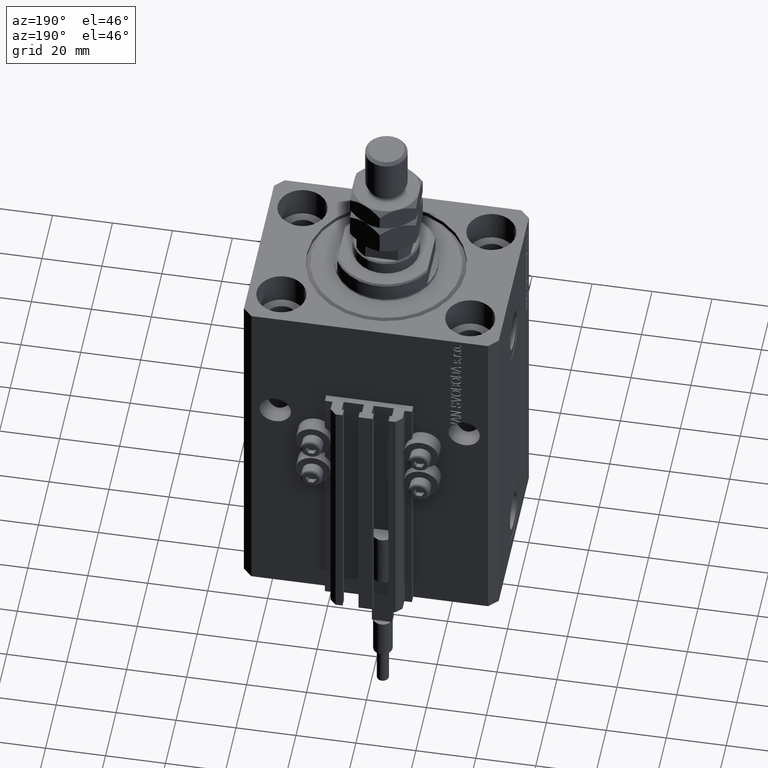
[diagram: clean part render]
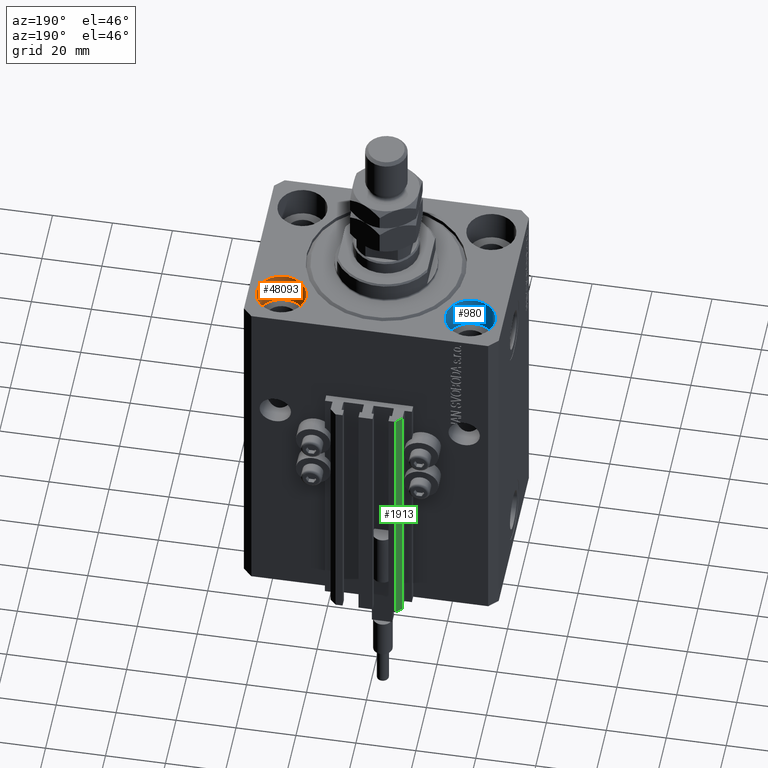
[diagram: same view with three faces highlighted in distinct colors, each labeled with its STEP entity id]
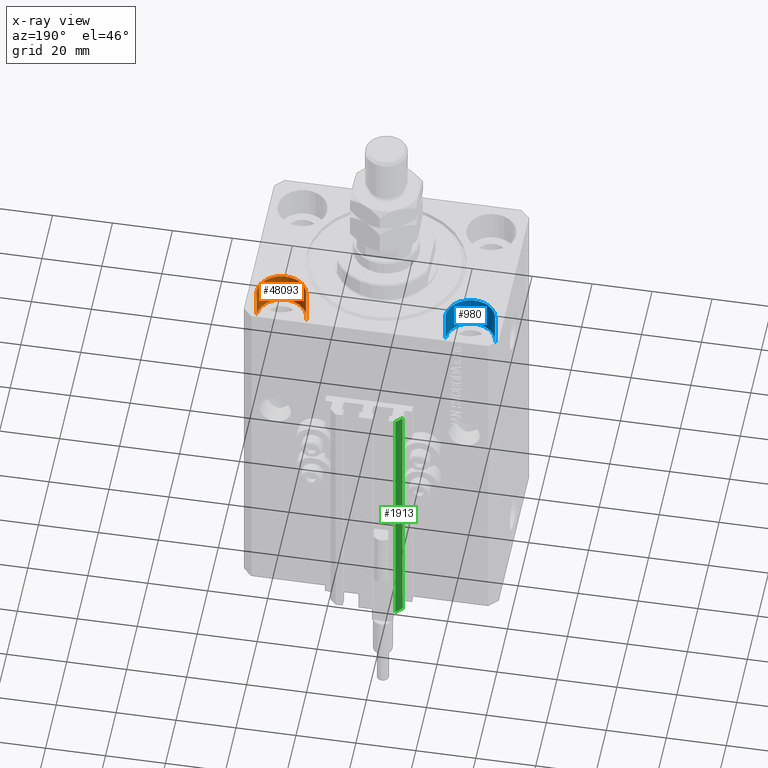
[diagram: x-ray of the same camera — body ghosted, the three highlighted faces saturated]
A machine part, auxiliary view with three faces highlighted in distinct colors.
The next image is the same camera in x-ray (body ghosted, the three faces saturated) — at least one of them is partly hidden behind the body in this view.
Their STEP definitions:

[orange] entity #48093 — the highlighted cylindrical surface (edge-blend (fillet) strip) has radius 8.25 mm, axis along (0, 0, 1).
#1193 = LINE ( 'NONE', #47423, #14315 ) ;
#2551 = ORIENTED_EDGE ( 'NONE', *, *, #49174, .F. ) ;
#3463 = DIRECTION ( 'NONE',  ( -0.000000000000000000, -0.000000000000000000, 1.000000000000000000 ) ) ;
#4171 = ORIENTED_EDGE ( 'NONE', *, *, #22312, .T. ) ;
#5800 = EDGE_CURVE ( 'NONE', #26988, #13732, #1193, .T. ) ;
#8121 = CARTESIAN_POINT ( 'NONE',  ( 31.50000000000000000, 20.00000000000001066, -11.00000000000000000 ) ) ;
#10718 = CIRCLE ( 'NONE', #19618, 8.249999999999992895 ) ;
#10845 = VERTEX_POINT ( 'NONE', #13178 ) ;
#12157 = VERTEX_POINT ( 'NONE', #25082 ) ;
#12809 = DIRECTION ( 'NONE',  ( -0.000000000000000000, -0.000000000000000000, 1.000000000000000000 ) ) ;
#13178 = CARTESIAN_POINT ( 'NONE',  ( 23.25000000000000355, 20.00000000000001066, 0.000000000000000000 ) ) ;
#13732 = VERTEX_POINT ( 'NONE', #43595 ) ;
#14315 = VECTOR ( 'NONE', #12809, 1000.000000000000000 ) ;
#18252 = AXIS2_PLACEMENT_3D ( 'NONE', #25162, #28441, #21114 ) ;
#19618 = AXIS2_PLACEMENT_3D ( 'NONE', #20675, #28748, #28496 ) ;
#20612 = FACE_OUTER_BOUND ( 'NONE', #34972, .T. ) ;
#20675 = CARTESIAN_POINT ( 'NONE',  ( 31.50000000000000000, 20.00000000000001066, 0.000000000000000000 ) ) ;
#21114 = DIRECTION ( 'NONE',  ( 1.000000000000000000, 0.000000000000000000, 0.000000000000000000 ) ) ;
#21624 = CYLINDRICAL_SURFACE ( 'NONE', #18252, 8.249999999999992895 ) ;
#22312 = EDGE_CURVE ( 'NONE', #10845, #13732, #10718, .T. ) ;
#23307 = CARTESIAN_POINT ( 'NONE',  ( 39.74999999999999289, 20.00000000000001066, -11.00000000000000000 ) ) ;
#24279 = DIRECTION ( 'NONE',  ( 1.000000000000000000, 0.000000000000000000, 0.000000000000000000 ) ) ;
#25082 = CARTESIAN_POINT ( 'NONE',  ( 23.25000000000000355, 20.00000000000001066, -11.00000000000000000 ) ) ;
#25162 = CARTESIAN_POINT ( 'NONE',  ( 31.50000000000000000, 20.00000000000001066, -11.00000000000000000 ) ) ;
#26988 = VERTEX_POINT ( 'NONE', #23307 ) ;
#27724 = EDGE_CURVE ( 'NONE', #12157, #10845, #41613, .T. ) ;
#27869 = VECTOR ( 'NONE', #3463, 1000.000000000000000 ) ;
#27952 = AXIS2_PLACEMENT_3D ( 'NONE', #8121, #31611, #24279 ) ;
#28441 = DIRECTION ( 'NONE',  ( -0.000000000000000000, -0.000000000000000000, 1.000000000000000000 ) ) ;
#28496 = DIRECTION ( 'NONE',  ( 1.000000000000000000, 0.000000000000000000, 0.000000000000000000 ) ) ;
#28748 = DIRECTION ( 'NONE',  ( 0.000000000000000000, 0.000000000000000000, 1.000000000000000000 ) ) ;
#29355 = ORIENTED_EDGE ( 'NONE', *, *, #27724, .T. ) ;
#31611 = DIRECTION ( 'NONE',  ( 0.000000000000000000, 0.000000000000000000, 1.000000000000000000 ) ) ;
#32983 = ORIENTED_EDGE ( 'NONE', *, *, #5800, .F. ) ;
#34972 = EDGE_LOOP ( 'NONE', ( #2551, #29355, #4171, #32983 ) ) ;
#37316 = CARTESIAN_POINT ( 'NONE',  ( 23.25000000000000355, 20.00000000000001066, -11.00000000000000000 ) ) ;
#41613 = LINE ( 'NONE', #37316, #27869 ) ;
#43595 = CARTESIAN_POINT ( 'NONE',  ( 39.74999999999999289, 20.00000000000001066, 0.000000000000000000 ) ) ;
#47423 = CARTESIAN_POINT ( 'NONE',  ( 39.74999999999999289, 20.00000000000001066, -11.00000000000000000 ) ) ;
#48093 = ADVANCED_FACE ( 'NONE', ( #20612 ), #21624, .F. ) ;
#49174 = EDGE_CURVE ( 'NONE', #12157, #26988, #49730, .T. ) ;
#49730 = CIRCLE ( 'NONE', #27952, 8.249999999999992895 ) ;

[blue] entity #980 — the highlighted cylindrical surface (edge-blend (fillet) strip) has radius 8.25 mm, axis along (0, 0, 1).
#980 = ADVANCED_FACE ( 'NONE', ( #32559 ), #24246, .F. ) ;
#1533 = EDGE_LOOP ( 'NONE', ( #13948, #11408, #10071, #40166 ) ) ;
#5041 = EDGE_CURVE ( 'NONE', #27590, #18912, #44169, .T. ) ;
#6231 = CARTESIAN_POINT ( 'NONE',  ( -39.75000000000000000, 20.00000000000000000, -11.00000000000000000 ) ) ;
#9044 = CARTESIAN_POINT ( 'NONE',  ( -39.75000000000000000, 20.00000000000000000, -11.00000000000000000 ) ) ;
#9555 = CARTESIAN_POINT ( 'NONE',  ( -31.50000000000000000, 20.00000000000000000, -11.00000000000000000 ) ) ;
#10071 = ORIENTED_EDGE ( 'NONE', *, *, #5041, .T. ) ;
#10398 = CIRCLE ( 'NONE', #38648, 8.250000000000000000 ) ;
#11363 = CARTESIAN_POINT ( 'NONE',  ( -31.50000000000000000, 20.00000000000000000, -11.00000000000000000 ) ) ;
#11408 = ORIENTED_EDGE ( 'NONE', *, *, #32414, .T. ) ;
#13948 = ORIENTED_EDGE ( 'NONE', *, *, #38478, .F. ) ;
#18912 = VERTEX_POINT ( 'NONE', #26638 ) ;
#19449 = DIRECTION ( 'NONE',  ( 1.000000000000000000, 0.000000000000000000, 0.000000000000000000 ) ) ;
#21667 = DIRECTION ( 'NONE',  ( -0.000000000000000000, -0.000000000000000000, 1.000000000000000000 ) ) ;
#23051 = VERTEX_POINT ( 'NONE', #30636 ) ;
#24246 = CYLINDRICAL_SURFACE ( 'NONE', #26408, 8.250000000000000000 ) ;
#24684 = VECTOR ( 'NONE', #21667, 1000.000000000000000 ) ;
#24931 = DIRECTION ( 'NONE',  ( 0.000000000000000000, 0.000000000000000000, 1.000000000000000000 ) ) ;
#25223 = CARTESIAN_POINT ( 'NONE',  ( -39.75000000000000000, 20.00000000000000000, 0.000000000000000000 ) ) ;
#26408 = AXIS2_PLACEMENT_3D ( 'NONE', #9555, #43675, #39644 ) ;
#26638 = CARTESIAN_POINT ( 'NONE',  ( -23.25000000000000000, 20.00000000000000000, 0.000000000000000000 ) ) ;
#27590 = VERTEX_POINT ( 'NONE', #25223 ) ;
#29747 = LINE ( 'NONE', #6231, #24684 ) ;
#29924 = CARTESIAN_POINT ( 'NONE',  ( -23.25000000000000000, 20.00000000000000000, -11.00000000000000000 ) ) ;
#30636 = CARTESIAN_POINT ( 'NONE',  ( -23.25000000000000000, 20.00000000000000000, -11.00000000000000000 ) ) ;
#32414 = EDGE_CURVE ( 'NONE', #38550, #27590, #29747, .T. ) ;
#32559 = FACE_OUTER_BOUND ( 'NONE', #1533, .T. ) ;
#38478 = EDGE_CURVE ( 'NONE', #38550, #23051, #10398, .T. ) ;
#38550 = VERTEX_POINT ( 'NONE', #9044 ) ;
#38648 = AXIS2_PLACEMENT_3D ( 'NONE', #11363, #42179, #19449 ) ;
#38715 = VECTOR ( 'NONE', #48613, 1000.000000000000000 ) ;
#39644 = DIRECTION ( 'NONE',  ( 1.000000000000000000, 0.000000000000000000, 0.000000000000000000 ) ) ;
#40135 = AXIS2_PLACEMENT_3D ( 'NONE', #43626, #24931, #48164 ) ;
#40166 = ORIENTED_EDGE ( 'NONE', *, *, #40761, .F. ) ;
#40761 = EDGE_CURVE ( 'NONE', #23051, #18912, #49102, .T. ) ;
#42179 = DIRECTION ( 'NONE',  ( 0.000000000000000000, 0.000000000000000000, 1.000000000000000000 ) ) ;
#43626 = CARTESIAN_POINT ( 'NONE',  ( -31.50000000000000000, 20.00000000000000000, 0.000000000000000000 ) ) ;
#43675 = DIRECTION ( 'NONE',  ( -0.000000000000000000, -0.000000000000000000, 1.000000000000000000 ) ) ;
#44169 = CIRCLE ( 'NONE', #40135, 8.250000000000000000 ) ;
#48164 = DIRECTION ( 'NONE',  ( 1.000000000000000000, 0.000000000000000000, 0.000000000000000000 ) ) ;
#48613 = DIRECTION ( 'NONE',  ( -0.000000000000000000, -0.000000000000000000, 1.000000000000000000 ) ) ;
#49102 = LINE ( 'NONE', #29924, #38715 ) ;

[green] entity #1913 — the highlighted planar face has unit normal (-0.7071, 0.7071, 0).
#299 = CARTESIAN_POINT ( 'NONE',  ( -10.00000000000000000, 39.49999999999999289, -123.0000000000000000 ) ) ;
#1913 = ADVANCED_FACE ( 'NONE', ( #24430 ), #5713, .T. ) ;
#1931 = DIRECTION ( 'NONE',  ( -0.7071067811865479058, 0.7071067811865472397, 0.000000000000000000 ) ) ;
#3162 = CARTESIAN_POINT ( 'NONE',  ( -10.00000000000000000, 39.49999999999999289, -33.00000000000000000 ) ) ;
#3455 = VECTOR ( 'NONE', #6639, 1000.000000000000000 ) ;
#5421 = EDGE_LOOP ( 'NONE', ( #25068, #11908, #20207, #48751 ) ) ;
#5713 = PLANE ( 'NONE',  #16742 ) ;
#6639 = DIRECTION ( 'NONE',  ( 0.000000000000000000, 0.000000000000000000, 1.000000000000000000 ) ) ;
#9167 = VERTEX_POINT ( 'NONE', #23223 ) ;
#9686 = LINE ( 'NONE', #17527, #3455 ) ;
#11908 = ORIENTED_EDGE ( 'NONE', *, *, #14218, .F. ) ;
#13047 = LINE ( 'NONE', #39338, #22492 ) ;
#14218 = EDGE_CURVE ( 'NONE', #44558, #38997, #19498, .T. ) ;
#15782 = CARTESIAN_POINT ( 'NONE',  ( -10.00000000000000000, 39.49999999999999289, -123.0000000000000000 ) ) ;
#16742 = AXIS2_PLACEMENT_3D ( 'NONE', #17596, #1931, #44109 ) ;
#16914 = EDGE_CURVE ( 'NONE', #9167, #26900, #9686, .T. ) ;
#17527 = CARTESIAN_POINT ( 'NONE',  ( -12.00000000000000000, 37.49999999999999289, -123.0000000000000000 ) ) ;
#17596 = CARTESIAN_POINT ( 'NONE',  ( -10.00000000000000000, 39.49999999999999289, -123.0000000000000000 ) ) ;
#19498 = LINE ( 'NONE', #299, #46093 ) ;
#20207 = ORIENTED_EDGE ( 'NONE', *, *, #39026, .T. ) ;
#22492 = VECTOR ( 'NONE', #28712, 999.9999999999998863 ) ;
#23223 = CARTESIAN_POINT ( 'NONE',  ( -12.00000000000000000, 37.49999999999999289, -123.0000000000000000 ) ) ;
#23373 = LINE ( 'NONE', #15782, #47547 ) ;
#23787 = DIRECTION ( 'NONE',  ( 0.000000000000000000, 0.000000000000000000, 1.000000000000000000 ) ) ;
#24430 = FACE_OUTER_BOUND ( 'NONE', #5421, .T. ) ;
#24599 = CARTESIAN_POINT ( 'NONE',  ( -12.00000000000000000, 37.49999999999999289, -33.00000000000000000 ) ) ;
#24979 = CARTESIAN_POINT ( 'NONE',  ( -10.00000000000000000, 39.49999999999999289, -123.0000000000000000 ) ) ;
#25068 = ORIENTED_EDGE ( 'NONE', *, *, #37919, .F. ) ;
#26900 = VERTEX_POINT ( 'NONE', #24599 ) ;
#28712 = DIRECTION ( 'NONE',  ( -0.7071067811865472397, -0.7071067811865479058, 0.000000000000000000 ) ) ;
#37919 = EDGE_CURVE ( 'NONE', #38997, #26900, #13047, .T. ) ;
#38997 = VERTEX_POINT ( 'NONE', #3162 ) ;
#39026 = EDGE_CURVE ( 'NONE', #44558, #9167, #23373, .T. ) ;
#39338 = CARTESIAN_POINT ( 'NONE',  ( -10.00000000000000000, 39.49999999999999289, -33.00000000000000000 ) ) ;
#42062 = DIRECTION ( 'NONE',  ( -0.7071067811865472397, -0.7071067811865479058, 0.000000000000000000 ) ) ;
#44109 = DIRECTION ( 'NONE',  ( -0.7071067811865472397, -0.7071067811865479058, 0.000000000000000000 ) ) ;
#44558 = VERTEX_POINT ( 'NONE', #24979 ) ;
#46093 = VECTOR ( 'NONE', #23787, 1000.000000000000000 ) ;
#47547 = VECTOR ( 'NONE', #42062, 999.9999999999998863 ) ;
#48751 = ORIENTED_EDGE ( 'NONE', *, *, #16914, .T. ) ;